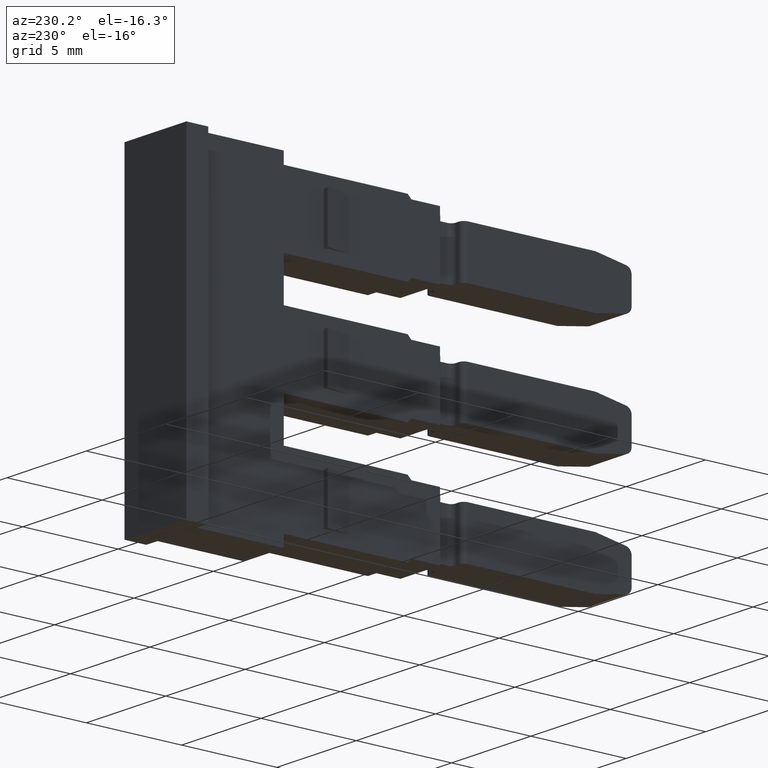
[diagram: clean part render]
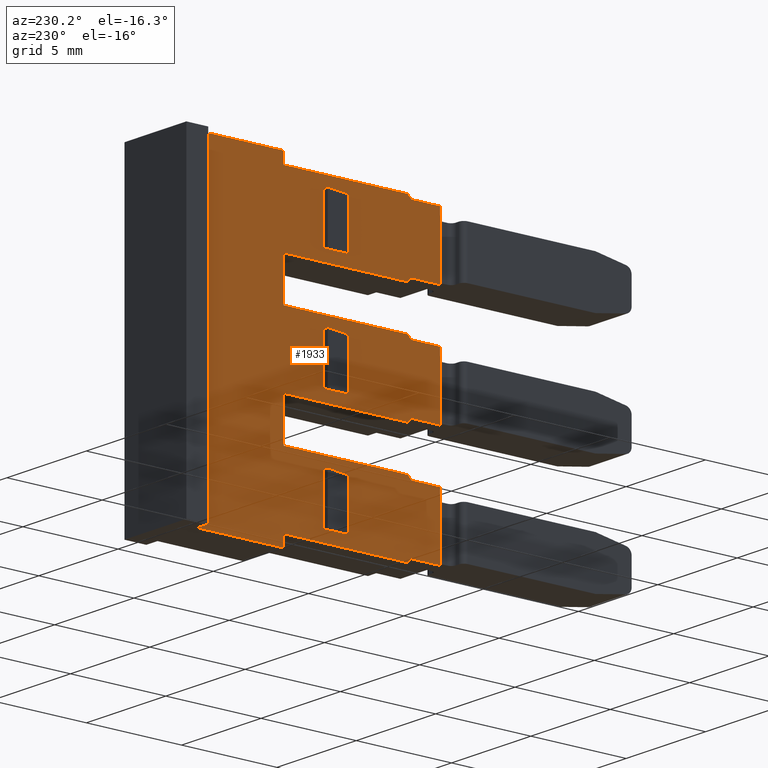
[diagram: same view with one face highlighted and labeled with its STEP entity id]
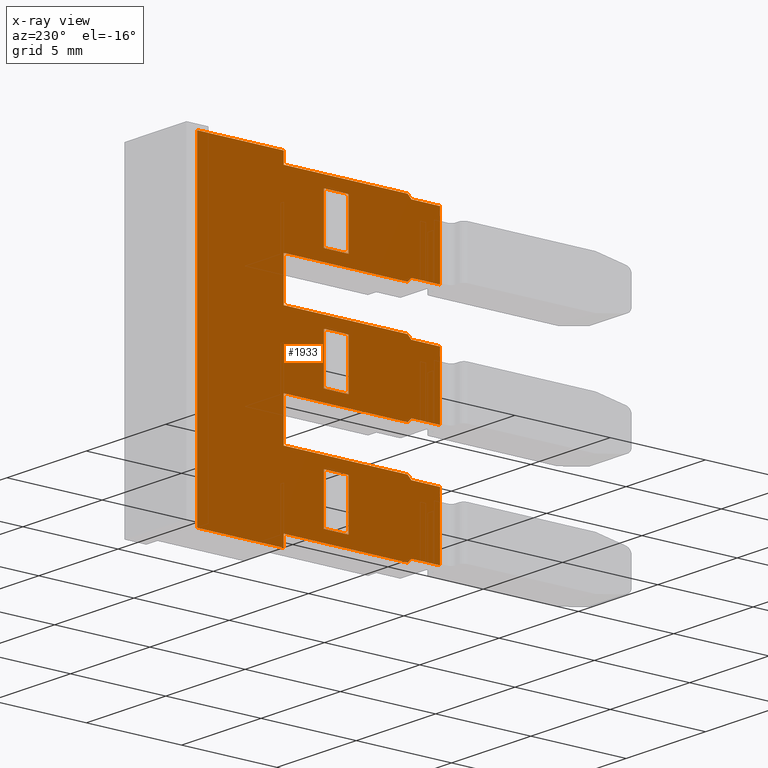
[diagram: x-ray of the same camera — body ghosted, the highlighted face saturated]
A machine part, auxiliary view. The second image highlights one B-rep face of the part: STEP entity #1933.
The next image is the same camera in x-ray: the body ghosted, the highlighted face saturated — about 0% of this face is hidden behind the body in this view.
In plain terms, the highlighted planar face has unit normal (1, -0, 0).
Its self-contained STEP definition (entity closure, byte-faithful):
#47 = VECTOR ( 'NONE', #3610, 1000.000000000000000 ) ;
#49 = VECTOR ( 'NONE', #3642, 1000.000000000000000 ) ;
#50 = VECTOR ( 'NONE', #3601, 1000.000000000000000 ) ;
#250 = AXIS2_PLACEMENT_3D ( 'NONE', #1290, #1283, #1274 ) ;
#1270 = PLANE ( 'NONE',  #250 ) ;
#1271 = FACE_OUTER_BOUND ( 'NONE', #2616, .T. ) ;
#1272 = FACE_BOUND ( 'NONE', #2613, .T. ) ;
#1274 = DIRECTION ( 'NONE',  ( 0.0000000000000000000, 0.0000000000000000000, -1.000000000000000000 ) ) ;
#1275 = FACE_BOUND ( 'NONE', #2566, .T. ) ;
#1283 = DIRECTION ( 'NONE',  ( 1.000000000000000000, -0.0000000000000000000, 0.0000000000000000000 ) ) ;
#1290 = CARTESIAN_POINT ( 'NONE',  ( 1456.769071211365800, 1007.642679537518000, -100.1158559843420100 ) ) ;
#1305 = FACE_BOUND ( 'NONE', #2559, .T. ) ;
#1438 = VECTOR ( 'NONE', #3810, 1000.000000000000000 ) ;
#1439 = VECTOR ( 'NONE', #3762, 1000.000000000000000 ) ;
#1445 = VECTOR ( 'NONE', #3800, 1000.000000000000000 ) ;
#1453 = VECTOR ( 'NONE', #3771, 1000.000000000000000 ) ;
#1454 = VECTOR ( 'NONE', #3835, 1000.000000000000000 ) ;
#1459 = VECTOR ( 'NONE', #3837, 1000.000000000000000 ) ;
#1462 = VECTOR ( 'NONE', #3866, 1000.000000000000100 ) ;
#1470 = VECTOR ( 'NONE', #3890, 1000.000000000000000 ) ;
#1488 = VECTOR ( 'NONE', #3899, 1000.000000000000000 ) ;
#1496 = VECTOR ( 'NONE', #3838, 1000.000000000000000 ) ;
#1501 = VECTOR ( 'NONE', #3992, 1000.000000000000000 ) ;
#1502 = VECTOR ( 'NONE', #3965, 1000.000000000000000 ) ;
#1503 = VECTOR ( 'NONE', #4045, 1000.000000000000000 ) ;
#1507 = VECTOR ( 'NONE', #3970, 1000.000000000000000 ) ;
#1508 = VECTOR ( 'NONE', #4005, 1000.000000000000000 ) ;
#1511 = VECTOR ( 'NONE', #4026, 1000.000000000000000 ) ;
#1512 = VECTOR ( 'NONE', #4014, 1000.000000000000000 ) ;
#1518 = VECTOR ( 'NONE', #4027, 1000.000000000000000 ) ;
#1520 = VECTOR ( 'NONE', #3083, 1000.000000000000000 ) ;
#1521 = VECTOR ( 'NONE', #4054, 1000.000000000000000 ) ;
#1523 = VECTOR ( 'NONE', #4018, 1000.000000000000000 ) ;
#1527 = VECTOR ( 'NONE', #3075, 1000.000000000000000 ) ;
#1528 = VECTOR ( 'NONE', #3113, 1000.000000000000000 ) ;
#1530 = VECTOR ( 'NONE', #3929, 1000.000000000000000 ) ;
#1531 = VECTOR ( 'NONE', #3957, 1000.000000000000000 ) ;
#1533 = VECTOR ( 'NONE', #4010, 1000.000000000000000 ) ;
#1535 = VECTOR ( 'NONE', #4020, 1000.000000000000000 ) ;
#1539 = VECTOR ( 'NONE', #3920, 1000.000000000000000 ) ;
#1540 = VECTOR ( 'NONE', #3961, 1000.000000000000000 ) ;
#1546 = VECTOR ( 'NONE', #3092, 1000.000000000000000 ) ;
#1549 = VECTOR ( 'NONE', #3074, 1000.000000000000000 ) ;
#1550 = VECTOR ( 'NONE', #3088, 1000.000000000000100 ) ;
#1554 = VECTOR ( 'NONE', #3996, 1000.000000000000000 ) ;
#1555 = VECTOR ( 'NONE', #3976, 1000.000000000000000 ) ;
#1557 = VECTOR ( 'NONE', #4003, 1000.000000000000000 ) ;
#1578 = VECTOR ( 'NONE', #3125, 1000.000000000000000 ) ;
#1591 = VECTOR ( 'NONE', #3144, 1000.000000000000000 ) ;
#1933 = ADVANCED_FACE ( 'NONE', ( #1271, #1272, #1305, #1275 ), #1270, .F. ) ;
#1967 = EDGE_CURVE ( 'NONE', #2313, #2359, #3589, .T. ) ;
#1974 = EDGE_CURVE ( 'NONE', #2341, #2427, #3612, .T. ) ;
#1977 = EDGE_CURVE ( 'NONE', #2401, #2404, #3604, .T. ) ;
#2020 = EDGE_CURVE ( 'NONE', #2403, #2344, #3735, .T. ) ;
#2023 = EDGE_CURVE ( 'NONE', #2381, #2426, #3744, .T. ) ;
#2026 = EDGE_CURVE ( 'NONE', #2420, #2344, #3758, .T. ) ;
#2035 = EDGE_CURVE ( 'NONE', #2403, #2397, #3808, .T. ) ;
#2039 = EDGE_CURVE ( 'NONE', #2424, #2378, #3797, .T. ) ;
#2042 = EDGE_CURVE ( 'NONE', #2396, #2401, #3788, .T. ) ;
#2046 = EDGE_CURVE ( 'NONE', #2379, #2400, #3827, .T. ) ;
#2052 = EDGE_CURVE ( 'NONE', #2404, #2341, #3825, .T. ) ;
#2066 = EDGE_CURVE ( 'NONE', #2418, #2372, #3910, .T. ) ;
#2070 = EDGE_CURVE ( 'NONE', #2397, #2372, #3831, .T. ) ;
#2075 = EDGE_CURVE ( 'NONE', #2427, #2420, #3958, .T. ) ;
#2080 = EDGE_CURVE ( 'NONE', #2384, #2391, #3955, .T. ) ;
#2081 = EDGE_CURVE ( 'NONE', #2391, #2389, #3874, .T. ) ;
#2083 = EDGE_CURVE ( 'NONE', #2378, #2385, #3954, .T. ) ;
#2087 = EDGE_CURVE ( 'NONE', #2392, #2492, #3951, .T. ) ;
#2088 = EDGE_CURVE ( 'NONE', #2486, #2487, #4000, .T. ) ;
#2089 = EDGE_CURVE ( 'NONE', #2493, #2396, #3932, .T. ) ;
#2090 = EDGE_CURVE ( 'NONE', #2419, #2373, #3948, .T. ) ;
#2092 = EDGE_CURVE ( 'NONE', #2418, #2379, #3966, .T. ) ;
#2095 = EDGE_CURVE ( 'NONE', #2383, #2384, #3974, .T. ) ;
#2100 = EDGE_CURVE ( 'NONE', #2445, #2359, #3998, .T. ) ;
#2101 = EDGE_CURVE ( 'NONE', #2382, #2489, #3997, .T. ) ;
#2105 = EDGE_CURVE ( 'NONE', #2313, #2439, #4007, .T. ) ;
#2106 = EDGE_CURVE ( 'NONE', #2392, #2390, #4024, .T. ) ;
#2107 = EDGE_CURVE ( 'NONE', #2437, #2476, #4001, .T. ) ;
#2108 = EDGE_CURVE ( 'NONE', #2482, #2487, #4022, .T. ) ;
#2110 = EDGE_CURVE ( 'NONE', #2419, #2381, #4051, .T. ) ;
#2111 = EDGE_CURVE ( 'NONE', #2373, #2426, #4025, .T. ) ;
#2117 = EDGE_CURVE ( 'NONE', #2489, #2476, #4034, .T. ) ;
#2119 = EDGE_CURVE ( 'NONE', #2385, #2445, #3110, .T. ) ;
#2123 = EDGE_CURVE ( 'NONE', #2382, #2437, #3114, .T. ) ;
#2125 = EDGE_CURVE ( 'NONE', #2390, #2383, #3109, .T. ) ;
#2128 = EDGE_CURVE ( 'NONE', #2389, #2493, #3115, .T. ) ;
#2130 = EDGE_CURVE ( 'NONE', #2439, #2492, #3111, .T. ) ;
#2131 = EDGE_CURVE ( 'NONE', #2435, #2482, #3089, .T. ) ;
#2137 = EDGE_CURVE ( 'NONE', #2435, #2486, #3119, .T. ) ;
#2138 = EDGE_CURVE ( 'NONE', #2424, #2400, #3105, .T. ) ;
#2313 = VERTEX_POINT ( 'NONE', #4076 ) ;
#2341 = VERTEX_POINT ( 'NONE', #4112 ) ;
#2344 = VERTEX_POINT ( 'NONE', #4162 ) ;
#2359 = VERTEX_POINT ( 'NONE', #4163 ) ;
#2372 = VERTEX_POINT ( 'NONE', #4110 ) ;
#2373 = VERTEX_POINT ( 'NONE', #4149 ) ;
#2378 = VERTEX_POINT ( 'NONE', #4157 ) ;
#2379 = VERTEX_POINT ( 'NONE', #4136 ) ;
#2381 = VERTEX_POINT ( 'NONE', #4124 ) ;
#2382 = VERTEX_POINT ( 'NONE', #4154 ) ;
#2383 = VERTEX_POINT ( 'NONE', #4137 ) ;
#2384 = VERTEX_POINT ( 'NONE', #4138 ) ;
#2385 = VERTEX_POINT ( 'NONE', #4139 ) ;
#2389 = VERTEX_POINT ( 'NONE', #4220 ) ;
#2390 = VERTEX_POINT ( 'NONE', #4180 ) ;
#2391 = VERTEX_POINT ( 'NONE', #4222 ) ;
#2392 = VERTEX_POINT ( 'NONE', #4228 ) ;
#2396 = VERTEX_POINT ( 'NONE', #4218 ) ;
#2397 = VERTEX_POINT ( 'NONE', #4178 ) ;
#2400 = VERTEX_POINT ( 'NONE', #4213 ) ;
#2401 = VERTEX_POINT ( 'NONE', #4169 ) ;
#2403 = VERTEX_POINT ( 'NONE', #4221 ) ;
#2404 = VERTEX_POINT ( 'NONE', #4216 ) ;
#2418 = VERTEX_POINT ( 'NONE', #4174 ) ;
#2419 = VERTEX_POINT ( 'NONE', #4188 ) ;
#2420 = VERTEX_POINT ( 'NONE', #4165 ) ;
#2424 = VERTEX_POINT ( 'NONE', #4190 ) ;
#2426 = VERTEX_POINT ( 'NONE', #4172 ) ;
#2427 = VERTEX_POINT ( 'NONE', #4210 ) ;
#2435 = VERTEX_POINT ( 'NONE', #4189 ) ;
#2437 = VERTEX_POINT ( 'NONE', #4193 ) ;
#2439 = VERTEX_POINT ( 'NONE', #4196 ) ;
#2445 = VERTEX_POINT ( 'NONE', #4203 ) ;
#2476 = VERTEX_POINT ( 'NONE', #4264 ) ;
#2482 = VERTEX_POINT ( 'NONE', #4243 ) ;
#2486 = VERTEX_POINT ( 'NONE', #4244 ) ;
#2487 = VERTEX_POINT ( 'NONE', #4249 ) ;
#2489 = VERTEX_POINT ( 'NONE', #4285 ) ;
#2492 = VERTEX_POINT ( 'NONE', #4231 ) ;
#2493 = VERTEX_POINT ( 'NONE', #4232 ) ;
#2559 = EDGE_LOOP ( 'NONE', ( #2943, #2988, #2951, #2959 ) ) ;
#2566 = EDGE_LOOP ( 'NONE', ( #2948, #2997, #3013, #3037 ) ) ;
#2613 = EDGE_LOOP ( 'NONE', ( #2972, #2979, #2985, #2877 ) ) ;
#2616 = EDGE_LOOP ( 'NONE', ( #2973, #3002, #2976, #2981, #2965, #3000, #2956, #2969, #2974, #2957, #2964, #2999, #2963, #2942, #2970, #2968, #2945, #2995, #2971, #2941, #2958, #2960, #2977, #2946, #2961, #2944, #2967, #2978 ) ) ;
#2877 = ORIENTED_EDGE ( 'NONE', *, *, #2023, .F. ) ;
#2941 = ORIENTED_EDGE ( 'NONE', *, *, #2128, .F. ) ;
#2942 = ORIENTED_EDGE ( 'NONE', *, *, #2075, .F. ) ;
#2943 = ORIENTED_EDGE ( 'NONE', *, *, #2137, .F. ) ;
#2944 = ORIENTED_EDGE ( 'NONE', *, *, #2087, .T. ) ;
#2945 = ORIENTED_EDGE ( 'NONE', *, *, #1977, .F. ) ;
#2946 = ORIENTED_EDGE ( 'NONE', *, *, #2125, .F. ) ;
#2948 = ORIENTED_EDGE ( 'NONE', *, *, #2101, .F. ) ;
#2951 = ORIENTED_EDGE ( 'NONE', *, *, #2108, .T. ) ;
#2956 = ORIENTED_EDGE ( 'NONE', *, *, #2046, .F. ) ;
#2957 = ORIENTED_EDGE ( 'NONE', *, *, #2070, .F. ) ;
#2958 = ORIENTED_EDGE ( 'NONE', *, *, #2081, .F. ) ;
#2959 = ORIENTED_EDGE ( 'NONE', *, *, #2088, .F. ) ;
#2960 = ORIENTED_EDGE ( 'NONE', *, *, #2080, .F. ) ;
#2961 = ORIENTED_EDGE ( 'NONE', *, *, #2106, .F. ) ;
#2963 = ORIENTED_EDGE ( 'NONE', *, *, #2026, .F. ) ;
#2964 = ORIENTED_EDGE ( 'NONE', *, *, #2035, .F. ) ;
#2965 = ORIENTED_EDGE ( 'NONE', *, *, #2039, .F. ) ;
#2967 = ORIENTED_EDGE ( 'NONE', *, *, #2130, .F. ) ;
#2968 = ORIENTED_EDGE ( 'NONE', *, *, #2052, .F. ) ;
#2969 = ORIENTED_EDGE ( 'NONE', *, *, #2092, .F. ) ;
#2970 = ORIENTED_EDGE ( 'NONE', *, *, #1974, .F. ) ;
#2971 = ORIENTED_EDGE ( 'NONE', *, *, #2089, .F. ) ;
#2972 = ORIENTED_EDGE ( 'NONE', *, *, #2110, .F. ) ;
#2973 = ORIENTED_EDGE ( 'NONE', *, *, #1967, .T. ) ;
#2974 = ORIENTED_EDGE ( 'NONE', *, *, #2066, .T. ) ;
#2976 = ORIENTED_EDGE ( 'NONE', *, *, #2119, .F. ) ;
#2977 = ORIENTED_EDGE ( 'NONE', *, *, #2095, .F. ) ;
#2978 = ORIENTED_EDGE ( 'NONE', *, *, #2105, .F. ) ;
#2979 = ORIENTED_EDGE ( 'NONE', *, *, #2090, .T. ) ;
#2981 = ORIENTED_EDGE ( 'NONE', *, *, #2083, .F. ) ;
#2985 = ORIENTED_EDGE ( 'NONE', *, *, #2111, .T. ) ;
#2988 = ORIENTED_EDGE ( 'NONE', *, *, #2131, .T. ) ;
#2995 = ORIENTED_EDGE ( 'NONE', *, *, #2042, .F. ) ;
#2997 = ORIENTED_EDGE ( 'NONE', *, *, #2123, .T. ) ;
#2999 = ORIENTED_EDGE ( 'NONE', *, *, #2020, .T. ) ;
#3000 = ORIENTED_EDGE ( 'NONE', *, *, #2138, .T. ) ;
#3002 = ORIENTED_EDGE ( 'NONE', *, *, #2100, .F. ) ;
#3013 = ORIENTED_EDGE ( 'NONE', *, *, #2107, .T. ) ;
#3037 = ORIENTED_EDGE ( 'NONE', *, *, #2117, .F. ) ;
#3068 = CARTESIAN_POINT ( 'NONE',  ( 1456.769071211365800, 997.2946795375181600, -87.04999999998996400 ) ) ;
#3071 = CARTESIAN_POINT ( 'NONE',  ( 1456.769071211365800, 1001.106402704003100, -92.94999999998999800 ) ) ;
#3074 = DIRECTION ( 'NONE',  ( 0.0000000000000000000, 0.7071067811902275200, -0.7071067811828676300 ) ) ;
#3075 = DIRECTION ( 'NONE',  ( 0.0000000000000000000, 1.000000000000000000, 0.0000000000000000000 ) ) ;
#3083 = DIRECTION ( 'NONE',  ( 0.0000000000000000000, 1.000000000000000000, 6.401193638283150300E-015 ) ) ;
#3086 = CARTESIAN_POINT ( 'NONE',  ( 1456.769071211365800, 1004.894679537507200, -93.74999999998701100 ) ) ;
#3087 = CARTESIAN_POINT ( 'NONE',  ( 1456.769071211365800, 997.4946795375115000, -89.44999999998889000 ) ) ;
#3088 = DIRECTION ( 'NONE',  ( 0.0000000000000000000, -0.7071067811881911500, -0.7071067811849037800 ) ) ;
#3089 = LINE ( 'NONE', #3091, #1546 ) ;
#3091 = CARTESIAN_POINT ( 'NONE',  ( 1456.769071211365400, 1000.592679537514600, -86.65000000009425200 ) ) ;
#3092 = DIRECTION ( 'NONE',  ( 0.0000000000000000000, 1.000000000000000000, 0.0000000000000000000 ) ) ;
#3097 = CARTESIAN_POINT ( 'NONE',  ( 1456.769071211365400, 1000.592679537507700, -92.55000000009425800 ) ) ;
#3105 = LINE ( 'NONE', #3159, #1578 ) ;
#3109 = LINE ( 'NONE', #3071, #1520 ) ;
#3110 = LINE ( 'NONE', #3068, #1549 ) ;
#3111 = LINE ( 'NONE', #3087, #1550 ) ;
#3113 = DIRECTION ( 'NONE',  ( 0.0000000000000000000, 1.000000000000000000, -9.281390519504917400E-014 ) ) ;
#3114 = LINE ( 'NONE', #3097, #1527 ) ;
#3115 = LINE ( 'NONE', #3086, #1528 ) ;
#3119 = LINE ( 'NONE', #3128, #1591 ) ;
#3125 = DIRECTION ( 'NONE',  ( 0.0000000000000000000, 1.000000000000000000, 3.433133262256396200E-014 ) ) ;
#3128 = CARTESIAN_POINT ( 'NONE',  ( 1456.769071211365400, 1000.592679537514600, -86.65000000009425200 ) ) ;
#3144 = DIRECTION ( 'NONE',  ( 0.0000000000000000000, 0.0000000000000000000, 1.000000000000000000 ) ) ;
#3159 = CARTESIAN_POINT ( 'NONE',  ( 1456.769071211365800, 995.7946795375190700, -83.74999999998840400 ) ) ;
#3589 = LINE ( 'NONE', #3602, #47 ) ;
#3601 = DIRECTION ( 'NONE',  ( 0.0000000000000000000, -0.7071067811865999800, -0.7071067811864950600 ) ) ;
#3602 = CARTESIAN_POINT ( 'NONE',  ( 1456.769071211365800, 1003.994679537520100, -83.64999999998819600 ) ) ;
#3604 = LINE ( 'NONE', #3652, #49 ) ;
#3610 = DIRECTION ( 'NONE',  ( 0.0000000000000000000, -5.266048633100518400E-014, 1.000000000000000000 ) ) ;
#3612 = LINE ( 'NONE', #3624, #50 ) ;
#3624 = CARTESIAN_POINT ( 'NONE',  ( 1456.769071211365800, 997.4946795375185500, -77.64999999999025700 ) ) ;
#3642 = DIRECTION ( 'NONE',  ( 0.0000000000000000000, 0.0000000000000000000, -1.000000000000000000 ) ) ;
#3652 = CARTESIAN_POINT ( 'NONE',  ( 1456.769071211365800, 1003.994679537513400, -100.1158559843420100 ) ) ;
#3728 = CARTESIAN_POINT ( 'NONE',  ( 1456.769071211365800, 995.7946795375190700, -81.14999999999173500 ) ) ;
#3735 = LINE ( 'NONE', #3728, #1453 ) ;
#3744 = LINE ( 'NONE', #3772, #1439 ) ;
#3758 = LINE ( 'NONE', #3807, #1445 ) ;
#3762 = DIRECTION ( 'NONE',  ( 0.0000000000000000000, 1.000000000000000000, 0.0000000000000000000 ) ) ;
#3771 = DIRECTION ( 'NONE',  ( 0.0000000000000000000, -1.000000000000000000, 3.397305977084603400E-014 ) ) ;
#3772 = CARTESIAN_POINT ( 'NONE',  ( 1456.769071211366100, 1000.592679537514000, -78.25000000009424600 ) ) ;
#3788 = LINE ( 'NONE', #3851, #1496 ) ;
#3797 = LINE ( 'NONE', #3846, #1454 ) ;
#3800 = DIRECTION ( 'NONE',  ( 0.0000000000000000000, 0.0000000000000000000, -1.000000000000000000 ) ) ;
#3807 = CARTESIAN_POINT ( 'NONE',  ( 1456.769071211365800, 995.7926795375192300, -100.1158559843420100 ) ) ;
#3808 = LINE ( 'NONE', #3809, #1438 ) ;
#3809 = CARTESIAN_POINT ( 'NONE',  ( 1456.769071211365800, 997.2946795375179400, -81.14999999999176300 ) ) ;
#3810 = DIRECTION ( 'NONE',  ( 0.0000000000000000000, 0.7071067811877986800, -0.7071067811852963500 ) ) ;
#3825 = LINE ( 'NONE', #3836, #1459 ) ;
#3827 = LINE ( 'NONE', #3844, #1462 ) ;
#3831 = LINE ( 'NONE', #3898, #1488 ) ;
#3835 = DIRECTION ( 'NONE',  ( 0.0000000000000000000, 0.0000000000000000000, -1.000000000000000000 ) ) ;
#3836 = CARTESIAN_POINT ( 'NONE',  ( 1456.769071211365800, 997.4946795375182100, -77.64999999999381000 ) ) ;
#3837 = DIRECTION ( 'NONE',  ( 0.0000000000000000000, -1.000000000000000000, -9.317217804676702700E-014 ) ) ;
#3838 = DIRECTION ( 'NONE',  ( 0.0000000000000000000, -1.000000000000000000, -9.317217804676702700E-014 ) ) ;
#3844 = CARTESIAN_POINT ( 'NONE',  ( 1456.769071211365800, 997.4946795375184400, -83.54999999998888400 ) ) ;
#3846 = CARTESIAN_POINT ( 'NONE',  ( 1456.769071211365800, 995.7926795375192300, -100.1158559843420100 ) ) ;
#3851 = CARTESIAN_POINT ( 'NONE',  ( 1456.769071211365800, 1004.894679537514000, -77.04999999999309100 ) ) ;
#3866 = DIRECTION ( 'NONE',  ( 0.0000000000000000000, -0.7071067811881911500, -0.7071067811849037800 ) ) ;
#3874 = LINE ( 'NONE', #3930, #1539 ) ;
#3883 = CARTESIAN_POINT ( 'NONE',  ( 1456.769071211365800, 1003.994679537520100, -83.64999999998819600 ) ) ;
#3890 = DIRECTION ( 'NONE',  ( 0.0000000000000000000, -5.266048633100518400E-014, 1.000000000000000000 ) ) ;
#3898 = CARTESIAN_POINT ( 'NONE',  ( 1456.769071211365800, 997.4946795375182100, -81.34999999999109800 ) ) ;
#3899 = DIRECTION ( 'NONE',  ( -1.843447636399818300E-030, 1.000000000000000000, 3.582728517178750100E-016 ) ) ;
#3910 = LINE ( 'NONE', #3883, #1470 ) ;
#3916 = CARTESIAN_POINT ( 'NONE',  ( 1456.769071211365800, 997.4946795375112700, -93.14999999998640600 ) ) ;
#3920 = DIRECTION ( 'NONE',  ( 0.0000000000000000000, 0.0000000000000000000, -1.000000000000000000 ) ) ;
#3925 = CARTESIAN_POINT ( 'NONE',  ( 1456.769071211365800, 1001.106402704010000, -87.04999999998999300 ) ) ;
#3929 = DIRECTION ( 'NONE',  ( -0.0000000000000000000, -1.000000000000000000, -0.0000000000000000000 ) ) ;
#3930 = CARTESIAN_POINT ( 'NONE',  ( 1456.769071211365800, 1003.994679537506500, -106.0158559843420000 ) ) ;
#3932 = LINE ( 'NONE', #4002, #1502 ) ;
#3939 = CARTESIAN_POINT ( 'NONE',  ( 1456.769071211365800, 1007.642679537518000, -77.84999999999017500 ) ) ;
#3948 = LINE ( 'NONE', #3985, #1554 ) ;
#3951 = LINE ( 'NONE', #3959, #1507 ) ;
#3954 = LINE ( 'NONE', #3925, #1540 ) ;
#3955 = LINE ( 'NONE', #3916, #1531 ) ;
#3957 = DIRECTION ( 'NONE',  ( 0.0000000000000000000, 1.000000000000000000, -9.281390519504917400E-014 ) ) ;
#3958 = LINE ( 'NONE', #3939, #1530 ) ;
#3959 = CARTESIAN_POINT ( 'NONE',  ( 1456.769071211365800, 995.7946795375121400, -89.64999999998841000 ) ) ;
#3961 = DIRECTION ( 'NONE',  ( 0.0000000000000000000, 1.000000000000000000, 6.401193638283150300E-015 ) ) ;
#3965 = DIRECTION ( 'NONE',  ( -0.0000000000000000000, -0.0000000000000000000, 1.000000000000000000 ) ) ;
#3966 = LINE ( 'NONE', #3967, #1557 ) ;
#3967 = CARTESIAN_POINT ( 'NONE',  ( 1456.769071211365800, 997.4946795375182100, -83.54999999998904100 ) ) ;
#3970 = DIRECTION ( 'NONE',  ( 0.0000000000000000000, 1.000000000000000000, 3.433133262256396200E-014 ) ) ;
#3974 = LINE ( 'NONE', #3975, #1555 ) ;
#3975 = CARTESIAN_POINT ( 'NONE',  ( 1456.769071211365800, 997.2946795375111200, -92.94999999998997000 ) ) ;
#3976 = DIRECTION ( 'NONE',  ( 0.0000000000000000000, 0.7071067811902275200, -0.7071067811828676300 ) ) ;
#3985 = CARTESIAN_POINT ( 'NONE',  ( 1456.769071211366100, 1000.592679537514000, -80.75000000009424600 ) ) ;
#3989 = CARTESIAN_POINT ( 'NONE',  ( 1456.769071211365800, 997.4946795375182100, -87.24999999998641400 ) ) ;
#3990 = CARTESIAN_POINT ( 'NONE',  ( 1456.769071211365400, 1000.592679537507700, -92.55000000009425800 ) ) ;
#3992 = DIRECTION ( 'NONE',  ( 0.0000000000000000000, 0.0000000000000000000, 1.000000000000000000 ) ) ;
#3996 = DIRECTION ( 'NONE',  ( 0.0000000000000000000, 1.000000000000000000, 0.0000000000000000000 ) ) ;
#3997 = LINE ( 'NONE', #3990, #1501 ) ;
#3998 = LINE ( 'NONE', #3989, #1508 ) ;
#4000 = LINE ( 'NONE', #4012, #1533 ) ;
#4001 = LINE ( 'NONE', #4039, #1518 ) ;
#4002 = CARTESIAN_POINT ( 'NONE',  ( 1456.769071211365800, 1008.542679537515100, -100.1158559843420100 ) ) ;
#4003 = DIRECTION ( 'NONE',  ( -3.766016875894430600E-044, -1.000000000000000000, -2.195768806939460200E-029 ) ) ;
#4005 = DIRECTION ( 'NONE',  ( 0.0000000000000000000, 1.000000000000000000, -9.281390519504917400E-014 ) ) ;
#4007 = LINE ( 'NONE', #4048, #1503 ) ;
#4010 = DIRECTION ( 'NONE',  ( 0.0000000000000000000, 1.000000000000000000, 0.0000000000000000000 ) ) ;
#4012 = CARTESIAN_POINT ( 'NONE',  ( 1456.769071211365400, 1000.592679537514600, -84.15000000009425200 ) ) ;
#4014 = DIRECTION ( 'NONE',  ( 0.0000000000000000000, 0.0000000000000000000, 1.000000000000000000 ) ) ;
#4015 = CARTESIAN_POINT ( 'NONE',  ( 1456.769071211365400, 1000.592679537507700, -90.05000000009424400 ) ) ;
#4016 = CARTESIAN_POINT ( 'NONE',  ( 1456.769071211366100, 1001.892679537514000, -80.75000000009424600 ) ) ;
#4017 = CARTESIAN_POINT ( 'NONE',  ( 1456.769071211365400, 1001.892679537514700, -86.65000000009425200 ) ) ;
#4018 = DIRECTION ( 'NONE',  ( 0.0000000000000000000, 1.000000000000000000, 0.0000000000000000000 ) ) ;
#4020 = DIRECTION ( 'NONE',  ( 0.0000000000000000000, 0.0000000000000000000, -1.000000000000000000 ) ) ;
#4022 = LINE ( 'NONE', #4017, #1512 ) ;
#4024 = LINE ( 'NONE', #4033, #1535 ) ;
#4025 = LINE ( 'NONE', #4016, #1511 ) ;
#4026 = DIRECTION ( 'NONE',  ( 0.0000000000000000000, 0.0000000000000000000, 1.000000000000000000 ) ) ;
#4027 = DIRECTION ( 'NONE',  ( 0.0000000000000000000, 0.0000000000000000000, 1.000000000000000000 ) ) ;
#4033 = CARTESIAN_POINT ( 'NONE',  ( 1456.769071211365800, 995.7926795375123000, -106.0158559843420000 ) ) ;
#4034 = LINE ( 'NONE', #4015, #1523 ) ;
#4039 = CARTESIAN_POINT ( 'NONE',  ( 1456.769071211365400, 1001.892679537507800, -92.55000000009425800 ) ) ;
#4045 = DIRECTION ( 'NONE',  ( -3.766016875894430600E-044, -1.000000000000000000, -2.195768806939460200E-029 ) ) ;
#4047 = CARTESIAN_POINT ( 'NONE',  ( 1456.769071211366100, 1000.592679537514000, -80.75000000009424600 ) ) ;
#4048 = CARTESIAN_POINT ( 'NONE',  ( 1456.769071211365800, 997.4946795375112700, -89.44999999998903200 ) ) ;
#4051 = LINE ( 'NONE', #4047, #1521 ) ;
#4054 = DIRECTION ( 'NONE',  ( 0.0000000000000000000, 0.0000000000000000000, 1.000000000000000000 ) ) ;
#4076 = CARTESIAN_POINT ( 'NONE',  ( 1456.769071211365800, 1003.994679537513400, -89.44999999998901800 ) ) ;
#4110 = CARTESIAN_POINT ( 'NONE',  ( 1456.769071211365800, 1003.994679537520300, -81.34999999999124000 ) ) ;
#4112 = CARTESIAN_POINT ( 'NONE',  ( 1456.769071211365800, 997.4946795375173000, -77.64999999999308500 ) ) ;
#4124 = CARTESIAN_POINT ( 'NONE',  ( 1456.769071211365800, 1000.592679537514000, -78.25000000009424600 ) ) ;
#4136 = CARTESIAN_POINT ( 'NONE',  ( 1456.769071211365800, 997.4946795375181000, -83.54999999998871400 ) ) ;
#4137 = CARTESIAN_POINT ( 'NONE',  ( 1456.769071211365800, 997.2946795375111200, -92.94999999998995600 ) ) ;
#4138 = CARTESIAN_POINT ( 'NONE',  ( 1456.769071211365800, 997.4946795375102500, -93.14999999998751400 ) ) ;
#4139 = CARTESIAN_POINT ( 'NONE',  ( 1456.769071211365800, 997.2946795375181600, -87.04999999998995000 ) ) ;
#4149 = CARTESIAN_POINT ( 'NONE',  ( 1456.769071211365800, 1001.892679537514000, -80.75000000009424600 ) ) ;
#4154 = CARTESIAN_POINT ( 'NONE',  ( 1456.769071211365800, 1000.592679537505500, -92.55000000009425800 ) ) ;
#4157 = CARTESIAN_POINT ( 'NONE',  ( 1456.769071211365800, 995.7926795375192300, -87.04999999999002100 ) ) ;
#4162 = CARTESIAN_POINT ( 'NONE',  ( 1456.769071211365800, 995.7926795375192300, -81.14999999999173500 ) ) ;
#4163 = CARTESIAN_POINT ( 'NONE',  ( 1456.769071211365800, 1003.994679537513400, -87.24999999998694000 ) ) ;
#4165 = CARTESIAN_POINT ( 'NONE',  ( 1456.769071211365800, 995.7926795375192300, -77.84999999999014600 ) ) ;
#4169 = CARTESIAN_POINT ( 'NONE',  ( 1456.769071211365800, 1003.994679537513400, -77.04999999999287800 ) ) ;
#4172 = CARTESIAN_POINT ( 'NONE',  ( 1456.769071211366100, 1001.892679537514000, -78.25000000009424600 ) ) ;
#4174 = CARTESIAN_POINT ( 'NONE',  ( 1456.769071211365800, 1003.994679537520300, -83.54999999998902600 ) ) ;
#4178 = CARTESIAN_POINT ( 'NONE',  ( 1456.769071211365800, 997.4946795375181000, -81.34999999999145400 ) ) ;
#4180 = CARTESIAN_POINT ( 'NONE',  ( 1456.769071211365800, 995.7926795375123000, -92.94999999999002700 ) ) ;
#4188 = CARTESIAN_POINT ( 'NONE',  ( 1456.769071211365800, 1000.592679537515100, -80.75000000009424600 ) ) ;
#4189 = CARTESIAN_POINT ( 'NONE',  ( 1456.769071211365800, 1000.592679537512400, -86.65000000009425200 ) ) ;
#4190 = CARTESIAN_POINT ( 'NONE',  ( 1456.769071211365800, 995.7926795375192300, -83.74999999998839000 ) ) ;
#4193 = CARTESIAN_POINT ( 'NONE',  ( 1456.769071211365800, 1001.892679537507800, -92.55000000009425800 ) ) ;
#4196 = CARTESIAN_POINT ( 'NONE',  ( 1456.769071211365800, 997.4946795375111600, -89.44999999998871900 ) ) ;
#4203 = CARTESIAN_POINT ( 'NONE',  ( 1456.769071211365800, 997.4946795375173000, -87.24999999998752300 ) ) ;
#4210 = CARTESIAN_POINT ( 'NONE',  ( 1456.769071211365800, 997.2946795375181600, -77.84999999999023100 ) ) ;
#4213 = CARTESIAN_POINT ( 'NONE',  ( 1456.769071211365800, 997.2946795375180500, -83.74999999998836100 ) ) ;
#4216 = CARTESIAN_POINT ( 'NONE',  ( 1456.769071211365800, 1003.994679537512800, -77.64999999999328400 ) ) ;
#4218 = CARTESIAN_POINT ( 'NONE',  ( 1456.769071211365800, 1008.542679537517400, -77.04999999999270700 ) ) ;
#4220 = CARTESIAN_POINT ( 'NONE',  ( 1456.769071211365800, 1003.994679537505800, -93.74999999998702500 ) ) ;
#4221 = CARTESIAN_POINT ( 'NONE',  ( 1456.769071211365800, 997.2946795375179400, -81.14999999999176300 ) ) ;
#4222 = CARTESIAN_POINT ( 'NONE',  ( 1456.769071211365800, 1003.994679537506500, -93.14999999998693200 ) ) ;
#4228 = CARTESIAN_POINT ( 'NONE',  ( 1456.769071211365800, 995.7926795375123000, -89.64999999998839500 ) ) ;
#4231 = CARTESIAN_POINT ( 'NONE',  ( 1456.769071211365800, 997.2946795375110000, -89.64999999998836700 ) ) ;
#4232 = CARTESIAN_POINT ( 'NONE',  ( 1456.769071211365800, 1008.542679537509700, -93.74999999998723900 ) ) ;
#4243 = CARTESIAN_POINT ( 'NONE',  ( 1456.769071211365800, 1001.892679537514700, -86.65000000009425200 ) ) ;
#4244 = CARTESIAN_POINT ( 'NONE',  ( 1456.769071211365800, 1000.592679537514600, -84.15000000009425200 ) ) ;
#4249 = CARTESIAN_POINT ( 'NONE',  ( 1456.769071211365400, 1001.892679537514700, -84.15000000009425200 ) ) ;
#4264 = CARTESIAN_POINT ( 'NONE',  ( 1456.769071211365400, 1001.892679537507800, -90.05000000009424400 ) ) ;
#4285 = CARTESIAN_POINT ( 'NONE',  ( 1456.769071211365800, 1000.592679537507700, -90.05000000009424400 ) ) ;